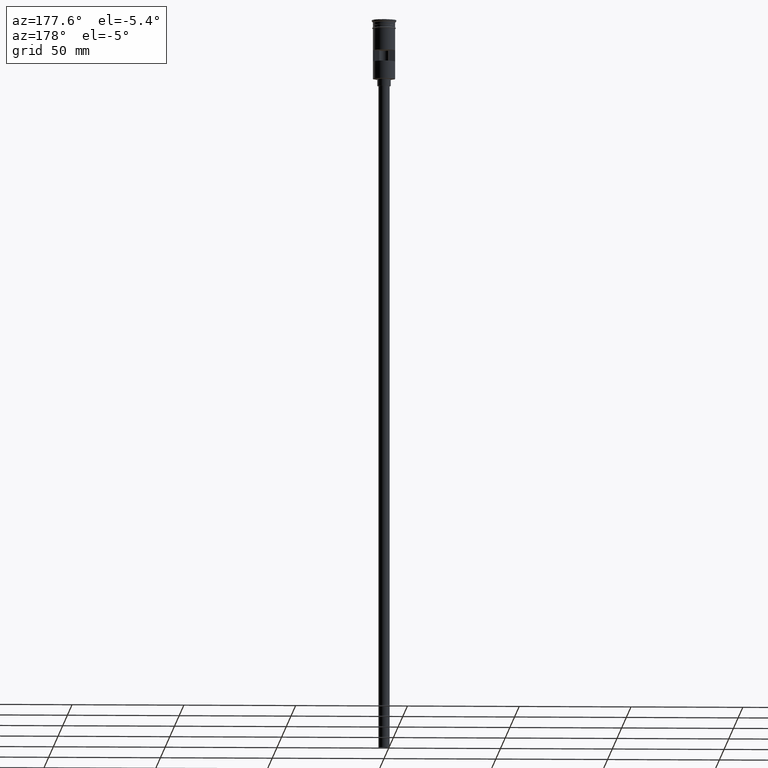
[diagram: clean part render]
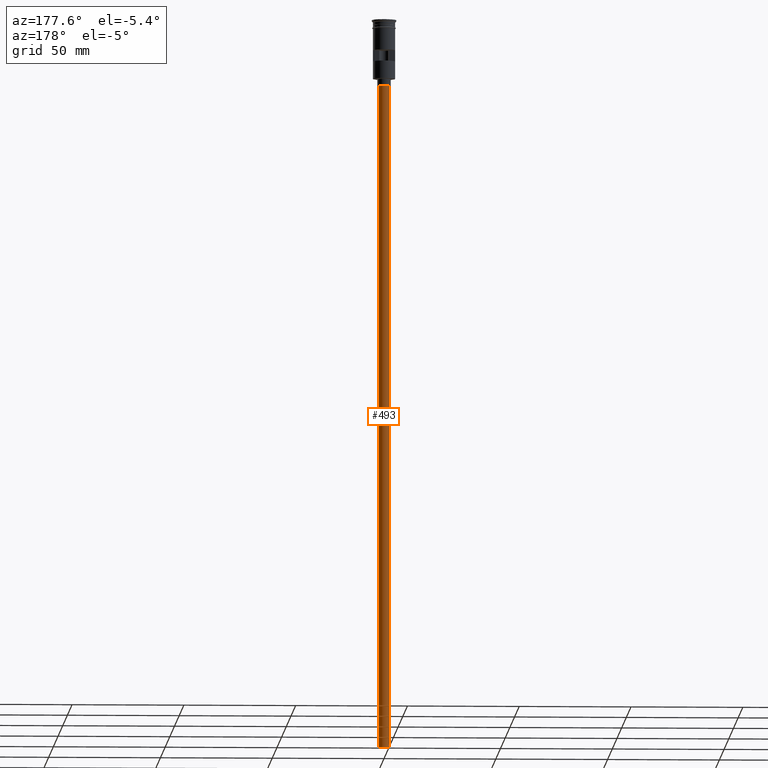
[diagram: same view with one face highlighted and labeled with its STEP entity id]
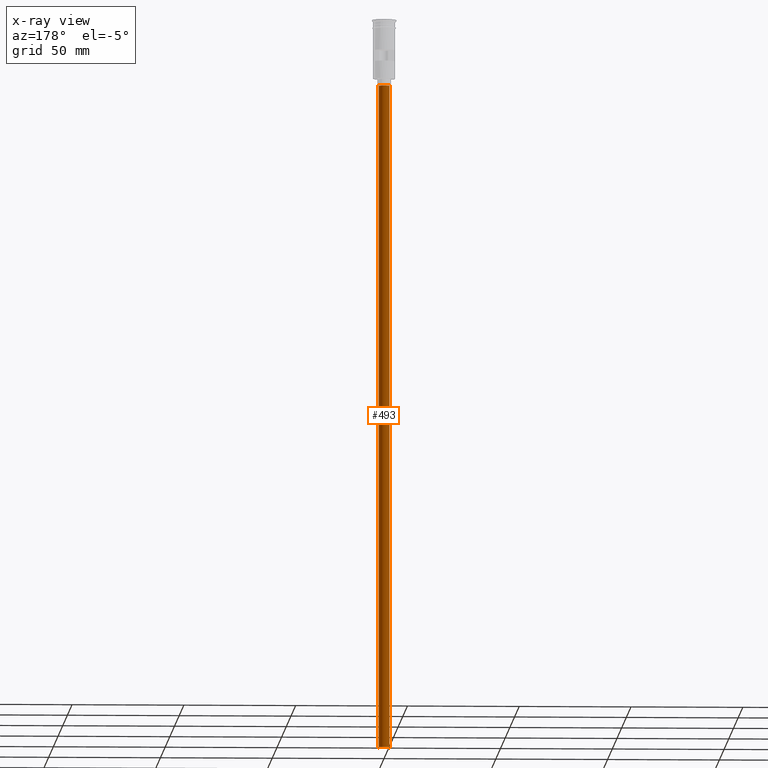
[diagram: x-ray of the same camera — body ghosted, the highlighted face saturated]
A machine part, auxiliary view. The second image highlights one B-rep face of the part: STEP entity #493.
The next image is the same camera in x-ray: the body ghosted, the highlighted face saturated — about 0% of this face is hidden behind the body in this view.
In plain terms, the highlighted cylindrical surface (edge-blend (fillet) strip) has radius 2.5 mm, axis along (-0, -0, 1).
Its self-contained STEP definition (entity closure, byte-faithful):
#35 = DIRECTION ( 'NONE',  ( -1.000000000000000000, 0.000000000000000000, 0.000000000000000000 ) ) ;
#59 = VERTEX_POINT ( 'NONE', #1384 ) ;
#122 = LINE ( 'NONE', #1118, #287 ) ;
#148 = EDGE_CURVE ( 'NONE', #1410, #1238, #250, .T. ) ;
#158 = CARTESIAN_POINT ( 'NONE',  ( 0.000000000000000000, 0.000000000000000000, -326.5000000000000000 ) ) ;
#173 = DIRECTION ( 'NONE',  ( -0.000000000000000000, -0.000000000000000000, 1.000000000000000000 ) ) ;
#175 = ORIENTED_EDGE ( 'NONE', *, *, #148, .F. ) ;
#200 = CARTESIAN_POINT ( 'NONE',  ( -2.500000000000000000, 3.061616997868383141E-16, -326.5000000000000000 ) ) ;
#201 = AXIS2_PLACEMENT_3D ( 'NONE', #158, #1509, #35 ) ;
#230 = DIRECTION ( 'NONE',  ( -0.000000000000000000, -0.000000000000000000, 1.000000000000000000 ) ) ;
#248 = ORIENTED_EDGE ( 'NONE', *, *, #876, .T. ) ;
#250 = CIRCLE ( 'NONE', #201, 2.500000000000000000 ) ;
#278 = DIRECTION ( 'NONE',  ( 1.000000000000000000, 0.000000000000000000, 0.000000000000000000 ) ) ;
#287 = VECTOR ( 'NONE', #230, 1000.000000000000000 ) ;
#302 = LINE ( 'NONE', #1532, #977 ) ;
#347 = EDGE_LOOP ( 'NONE', ( #175, #580, #248, #856 ) ) ;
#415 = CARTESIAN_POINT ( 'NONE',  ( 0.000000000000000000, 0.000000000000000000, -326.5000000000000000 ) ) ;
#422 = DIRECTION ( 'NONE',  ( -0.000000000000000000, -0.000000000000000000, 1.000000000000000000 ) ) ;
#493 = ADVANCED_FACE ( 'NONE', ( #507 ), #1156, .T. ) ;
#507 = FACE_OUTER_BOUND ( 'NONE', #347, .T. ) ;
#580 = ORIENTED_EDGE ( 'NONE', *, *, #1529, .T. ) ;
#618 = CARTESIAN_POINT ( 'NONE',  ( 2.500000000000000000, 0.000000000000000000, -29.50000000000000000 ) ) ;
#735 = DIRECTION ( 'NONE',  ( 0.000000000000000000, 0.000000000000000000, -1.000000000000000000 ) ) ;
#737 = AXIS2_PLACEMENT_3D ( 'NONE', #415, #173, #278 ) ;
#841 = CIRCLE ( 'NONE', #1390, 2.500000000000000000 ) ;
#843 = CARTESIAN_POINT ( 'NONE',  ( 0.000000000000000000, 0.000000000000000000, -29.50000000000000000 ) ) ;
#856 = ORIENTED_EDGE ( 'NONE', *, *, #1069, .F. ) ;
#876 = EDGE_CURVE ( 'NONE', #59, #1525, #841, .T. ) ;
#977 = VECTOR ( 'NONE', #422, 1000.000000000000000 ) ;
#1069 = EDGE_CURVE ( 'NONE', #1238, #1525, #302, .T. ) ;
#1118 = CARTESIAN_POINT ( 'NONE',  ( -2.500000000000000000, 3.061616997868383141E-16, -326.5000000000000000 ) ) ;
#1156 = CYLINDRICAL_SURFACE ( 'NONE', #737, 2.500000000000000000 ) ;
#1236 = DIRECTION ( 'NONE',  ( -1.000000000000000000, 0.000000000000000000, 0.000000000000000000 ) ) ;
#1238 = VERTEX_POINT ( 'NONE', #1252 ) ;
#1252 = CARTESIAN_POINT ( 'NONE',  ( 2.500000000000000000, 0.000000000000000000, -326.5000000000000000 ) ) ;
#1384 = CARTESIAN_POINT ( 'NONE',  ( -2.500000000000000000, 3.061616997868383141E-16, -29.50000000000000000 ) ) ;
#1390 = AXIS2_PLACEMENT_3D ( 'NONE', #843, #735, #1236 ) ;
#1410 = VERTEX_POINT ( 'NONE', #200 ) ;
#1509 = DIRECTION ( 'NONE',  ( 0.000000000000000000, 0.000000000000000000, -1.000000000000000000 ) ) ;
#1525 = VERTEX_POINT ( 'NONE', #618 ) ;
#1529 = EDGE_CURVE ( 'NONE', #1410, #59, #122, .T. ) ;
#1532 = CARTESIAN_POINT ( 'NONE',  ( 2.500000000000000000, 0.000000000000000000, -326.5000000000000000 ) ) ;